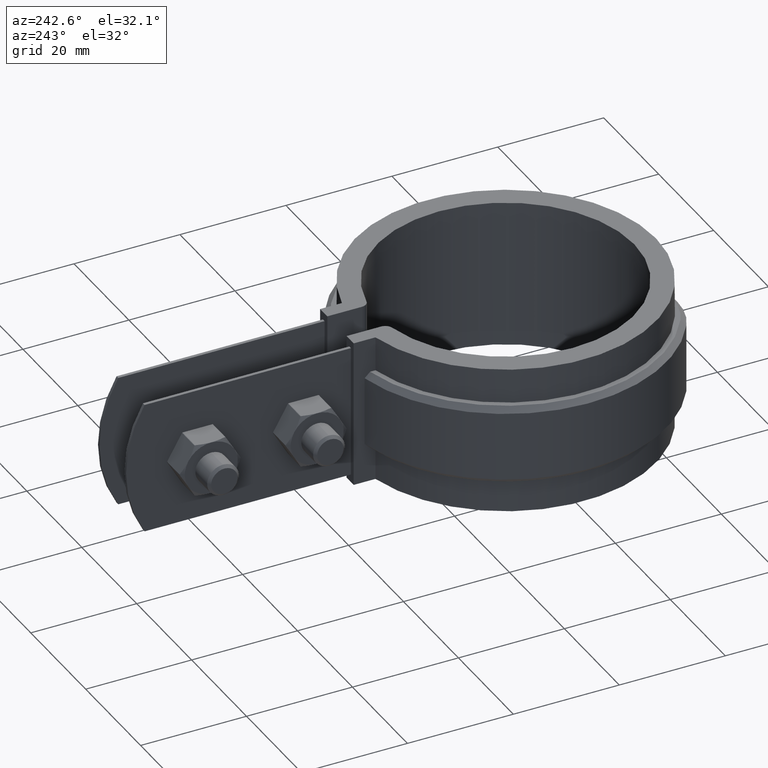
[diagram: clean part render]
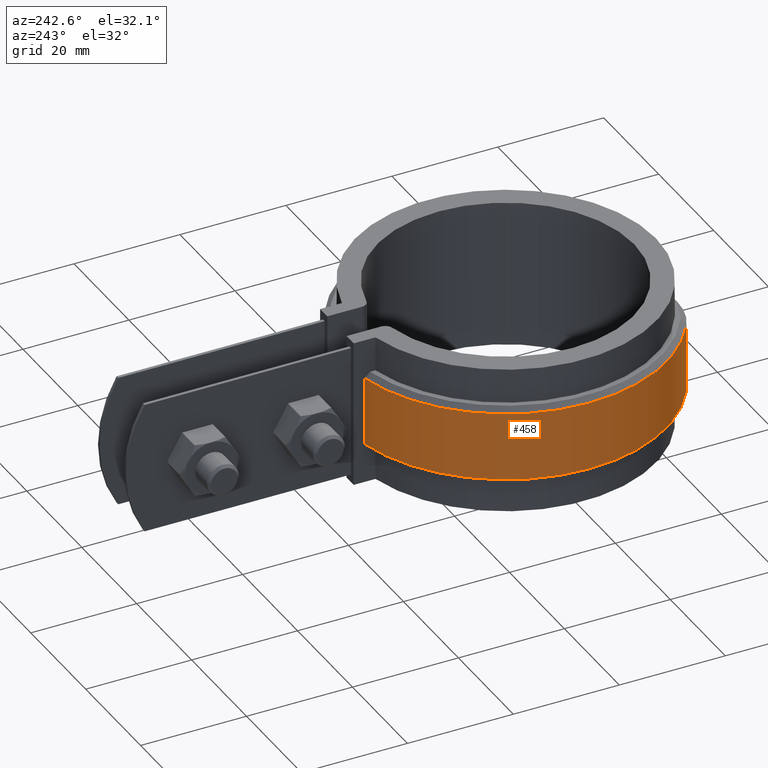
[diagram: same view with one face highlighted and labeled with its STEP entity id]
A machine part, auxiliary view. The second image highlights one B-rep face of the part: STEP entity #458.
In plain terms, the highlighted cylindrical surface (partial cylindrical patch) has radius 30.395 mm, axis along (0, 0, -1).
Its self-contained STEP definition (entity closure, byte-faithful):
#458 = ADVANCED_FACE( '', ( #832 ), #833, .T. );
#832 = FACE_OUTER_BOUND( '', #1922, .T. );
#833 = CYLINDRICAL_SURFACE( '', #1923, 30.3950000000000 );
#1922 = EDGE_LOOP( '', ( #4637, #4638, #4639, #4640 ) );
#1923 = AXIS2_PLACEMENT_3D( '', #4641, #4642, #4643 );
#4637 = ORIENTED_EDGE( '', *, *, #5536, .F. );
#4638 = ORIENTED_EDGE( '', *, *, #5554, .T. );
#4639 = ORIENTED_EDGE( '', *, *, #5599, .T. );
#4640 = ORIENTED_EDGE( '', *, *, #5582, .T. );
#4641 = CARTESIAN_POINT( '', ( -8.67361737988404E-016, -3.46944695195361E-015, -20.0000000000000 ) );
#4642 = DIRECTION( '', ( 0.000000000000000, 0.000000000000000, -1.00000000000000 ) );
#4643 = DIRECTION( '', ( 0.194983714095246, 0.980806480014087, 0.000000000000000 ) );
#5536 = EDGE_CURVE( '', #6374, #6376, #6377, .T. );
#5554 = EDGE_CURVE( '', #6374, #6398, #6404, .F. );
#5582 = EDGE_CURVE( '', #6443, #6376, #6447, .T. );
#5599 = EDGE_CURVE( '', #6398, #6443, #6465, .T. );
#6374 = VERTEX_POINT( '', #9779 );
#6376 = VERTEX_POINT( '', #9784 );
#6377 = LINE( '', #9785, #9786 );
#6398 = VERTEX_POINT( '', #9826 );
#6404 = CIRCLE( '', #9833, 30.3950000000000 );
#6443 = VERTEX_POINT( '', #9884 );
#6447 = CIRCLE( '', #9889, 30.3950000000000 );
#6465 = LINE( '', #9944, #9945 );
#9779 = CARTESIAN_POINT( '', ( -6.10000000000002, 29.7766019720182, -19.0000000000000 ) );
#9784 = CARTESIAN_POINT( '', ( -6.10000000000002, 29.7766019720182, -6.00000000000000 ) );
#9785 = CARTESIAN_POINT( '', ( -6.10000000000002, 29.7766019720182, -20.0000000000000 ) );
#9786 = VECTOR( '', #10728, 1000.00000000000 );
#9826 = CARTESIAN_POINT( '', ( -16.0865111739769, -25.7891485561179, -19.0000000000000 ) );
#9833 = AXIS2_PLACEMENT_3D( '', #10749, #10750, #10751 );
#9884 = CARTESIAN_POINT( '', ( -16.0865111739769, -25.7891485561179, -6.00000000000000 ) );
#9889 = AXIS2_PLACEMENT_3D( '', #10807, #10808, #10809 );
#9944 = CARTESIAN_POINT( '', ( -16.0865111739769, -25.7891485561179, -20.0000000000000 ) );
#9945 = VECTOR( '', #10825, 1000.00000000000 );
#10728 = DIRECTION( '', ( 0.000000000000000, 0.000000000000000, 1.00000000000000 ) );
#10749 = CARTESIAN_POINT( '', ( -8.67361737988404E-016, -3.46944695195361E-015, -19.0000000000000 ) );
#10750 = DIRECTION( '', ( 0.000000000000000, 0.000000000000000, -1.00000000000000 ) );
#10751 = DIRECTION( '', ( -1.00000000000000, 0.000000000000000, 0.000000000000000 ) );
#10807 = CARTESIAN_POINT( '', ( -8.67361737988404E-016, -3.46944695195361E-015, -6.00000000000000 ) );
#10808 = DIRECTION( '', ( 0.000000000000000, 0.000000000000000, -1.00000000000000 ) );
#10809 = DIRECTION( '', ( -1.00000000000000, 0.000000000000000, 0.000000000000000 ) );
#10825 = DIRECTION( '', ( 0.000000000000000, 0.000000000000000, 1.00000000000000 ) );